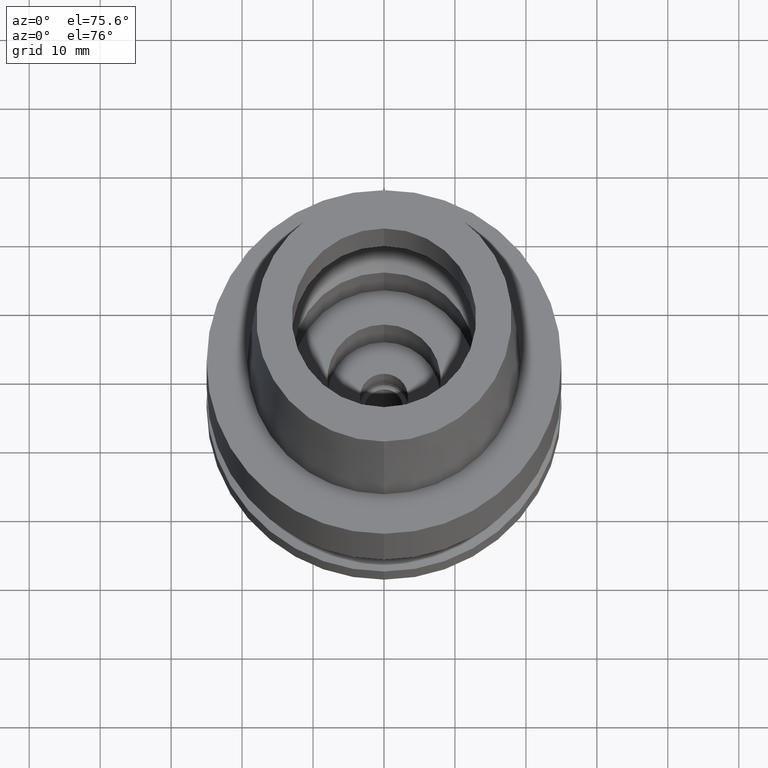
[diagram: clean part render]
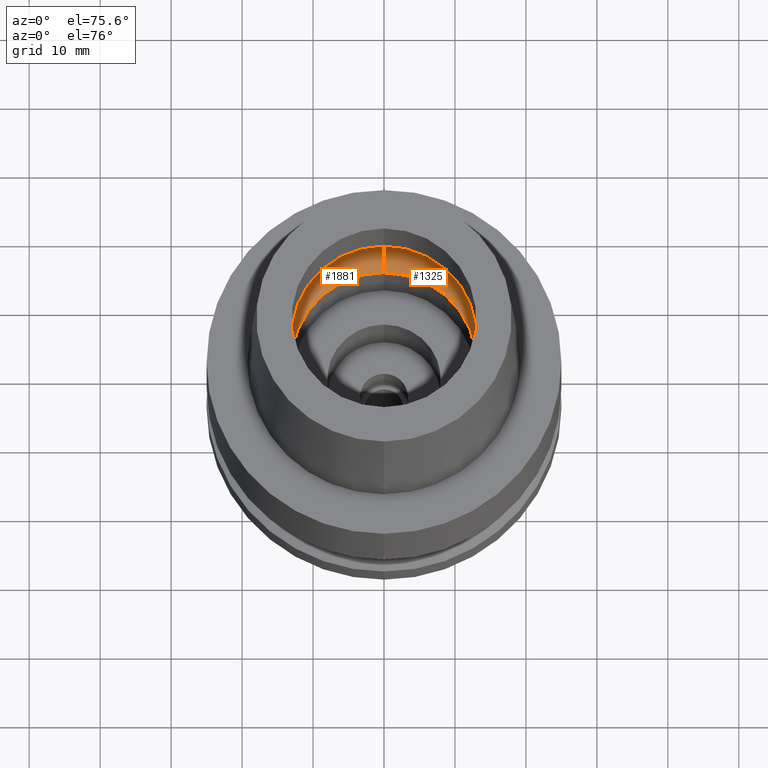
[diagram: same view with one multi-face feature highlighted, each face labeled with its STEP entity id]
A machine part, auxiliary view. The highlighted faces form ONE feature: a constant-radius fillet chain: 2 tangent blend faces with common blend radius 6 mm. The faces share edges in the B-rep.
Their STEP definitions:
[1] entity #1881 (Torus):
#84 = EDGE_CURVE ( 'NONE', #827, #768, #1248, .T. ) ;
#343 = ORIENTED_EDGE ( 'NONE', *, *, #1279, .T. ) ;
#371 = TOROIDAL_SURFACE ( 'NONE', #2243, 10.00000000000000000, 6.000000000000000000 ) ;
#435 = CARTESIAN_POINT ( 'NONE',  ( 0.0000000000000000000, 16.00000000000000000, 5.245999999999999552 ) ) ;
#445 = CARTESIAN_POINT ( 'NONE',  ( 0.0000000000000000000, -10.00000000000000000, 5.245999999999999552 ) ) ;
#536 = AXIS2_PLACEMENT_3D ( 'NONE', #2119, #1357, #1092 ) ;
#588 = AXIS2_PLACEMENT_3D ( 'NONE', #445, #1696, #1052 ) ;
#626 = CARTESIAN_POINT ( 'NONE',  ( 0.0000000000000000000, -16.00000000000000000, 5.245999999999999552 ) ) ;
#667 = EDGE_LOOP ( 'NONE', ( #1711, #2447, #1794, #343 ) ) ;
#768 = VERTEX_POINT ( 'NONE', #435 ) ;
#783 = EDGE_CURVE ( 'NONE', #2288, #2557, #1975, .T. ) ;
#811 = DIRECTION ( 'NONE',  ( 0.0000000000000000000, 1.000000000000000000, 0.0000000000000000000 ) ) ;
#827 = VERTEX_POINT ( 'NONE', #626 ) ;
#986 = CIRCLE ( 'NONE', #588, 6.000000000000000000 ) ;
#1052 = DIRECTION ( 'NONE',  ( 0.0000000000000000000, -0.5000000000000169864, -0.8660254037844289376 ) ) ;
#1092 = DIRECTION ( 'NONE',  ( 0.0000000000000000000, -1.000000000000000000, 0.0000000000000000000 ) ) ;
#1248 = CIRCLE ( 'NONE', #536, 16.00000000000000000 ) ;
#1279 = EDGE_CURVE ( 'NONE', #2288, #768, #1890, .T. ) ;
#1357 = DIRECTION ( 'NONE',  ( 0.0000000000000000000, 0.0000000000000000000, -1.000000000000000000 ) ) ;
#1442 = CARTESIAN_POINT ( 'NONE',  ( 0.0000000000000000000, 13.00000000000000000, 0.04984757729336999899 ) ) ;
#1639 = DIRECTION ( 'NONE',  ( 0.0000000000000000000, 1.000000000000000000, 0.0000000000000000000 ) ) ;
#1662 = FACE_OUTER_BOUND ( 'NONE', #667, .T. ) ;
#1696 = DIRECTION ( 'NONE',  ( -1.000000000000000000, 0.0000000000000000000, 0.0000000000000000000 ) ) ;
#1711 = ORIENTED_EDGE ( 'NONE', *, *, #84, .F. ) ;
#1794 = ORIENTED_EDGE ( 'NONE', *, *, #783, .F. ) ;
#1881 = ADVANCED_FACE ( 'NONE', ( #1662 ), #371, .F. ) ;
#1883 = CARTESIAN_POINT ( 'NONE',  ( 0.0000000000000000000, 0.0000000000000000000, 0.04984757729336999899 ) ) ;
#1890 = CIRCLE ( 'NONE', #2248, 6.000000000000000000 ) ;
#1894 = DIRECTION ( 'NONE',  ( 0.0000000000000000000, 0.5000000000000169864, -0.8660254037844289376 ) ) ;
#1906 = CARTESIAN_POINT ( 'NONE',  ( 0.0000000000000000000, -13.00000000000000000, 0.04984757729336999899 ) ) ;
#1933 = AXIS2_PLACEMENT_3D ( 'NONE', #1883, #2305, #811 ) ;
#1975 = CIRCLE ( 'NONE', #1933, 13.00000000000000000 ) ;
#2026 = CARTESIAN_POINT ( 'NONE',  ( 0.0000000000000000000, 10.00000000000000000, 5.245999999999999552 ) ) ;
#2052 = EDGE_CURVE ( 'NONE', #2557, #827, #986, .T. ) ;
#2119 = CARTESIAN_POINT ( 'NONE',  ( 0.0000000000000000000, 0.0000000000000000000, 5.245999999999999552 ) ) ;
#2160 = CARTESIAN_POINT ( 'NONE',  ( 0.0000000000000000000, 0.0000000000000000000, 5.245999999999999552 ) ) ;
#2232 = DIRECTION ( 'NONE',  ( 1.000000000000000000, 0.0000000000000000000, 0.0000000000000000000 ) ) ;
#2243 = AXIS2_PLACEMENT_3D ( 'NONE', #2160, #2335, #1639 ) ;
#2248 = AXIS2_PLACEMENT_3D ( 'NONE', #2026, #2232, #1894 ) ;
#2288 = VERTEX_POINT ( 'NONE', #1442 ) ;
#2305 = DIRECTION ( 'NONE',  ( 0.0000000000000000000, 0.0000000000000000000, 1.000000000000000000 ) ) ;
#2335 = DIRECTION ( 'NONE',  ( 0.0000000000000000000, 0.0000000000000000000, 1.000000000000000000 ) ) ;
#2447 = ORIENTED_EDGE ( 'NONE', *, *, #2052, .F. ) ;
#2557 = VERTEX_POINT ( 'NONE', #1906 ) ;
[2] entity #1325 (Torus):
#35 = DIRECTION ( 'NONE',  ( 0.0000000000000000000, 1.000000000000000000, 0.0000000000000000000 ) ) ;
#149 = TOROIDAL_SURFACE ( 'NONE', #1247, 10.00000000000000000, 6.000000000000000000 ) ;
#435 = CARTESIAN_POINT ( 'NONE',  ( 0.0000000000000000000, 16.00000000000000000, 5.245999999999999552 ) ) ;
#444 = CARTESIAN_POINT ( 'NONE',  ( 0.0000000000000000000, 0.0000000000000000000, 5.245999999999999552 ) ) ;
#445 = CARTESIAN_POINT ( 'NONE',  ( 0.0000000000000000000, -10.00000000000000000, 5.245999999999999552 ) ) ;
#513 = ORIENTED_EDGE ( 'NONE', *, *, #2393, .F. ) ;
#570 = DIRECTION ( 'NONE',  ( 0.0000000000000000000, 0.0000000000000000000, -1.000000000000000000 ) ) ;
#588 = AXIS2_PLACEMENT_3D ( 'NONE', #445, #1696, #1052 ) ;
#601 = ORIENTED_EDGE ( 'NONE', *, *, #2113, .F. ) ;
#626 = CARTESIAN_POINT ( 'NONE',  ( 0.0000000000000000000, -16.00000000000000000, 5.245999999999999552 ) ) ;
#683 = DIRECTION ( 'NONE',  ( 0.0000000000000000000, -1.000000000000000000, 0.0000000000000000000 ) ) ;
#768 = VERTEX_POINT ( 'NONE', #435 ) ;
#796 = EDGE_LOOP ( 'NONE', ( #601, #2224, #513, #872 ) ) ;
#827 = VERTEX_POINT ( 'NONE', #626 ) ;
#859 = FACE_OUTER_BOUND ( 'NONE', #796, .T. ) ;
#872 = ORIENTED_EDGE ( 'NONE', *, *, #1279, .F. ) ;
#885 = DIRECTION ( 'NONE',  ( 0.0000000000000000000, 0.0000000000000000000, 1.000000000000000000 ) ) ;
#914 = CARTESIAN_POINT ( 'NONE',  ( 0.0000000000000000000, 0.0000000000000000000, 0.04984757729336999899 ) ) ;
#986 = CIRCLE ( 'NONE', #588, 6.000000000000000000 ) ;
#1009 = DIRECTION ( 'NONE',  ( 0.0000000000000000000, 1.000000000000000000, 0.0000000000000000000 ) ) ;
#1052 = DIRECTION ( 'NONE',  ( 0.0000000000000000000, -0.5000000000000169864, -0.8660254037844289376 ) ) ;
#1068 = CIRCLE ( 'NONE', #2591, 16.00000000000000000 ) ;
#1080 = DIRECTION ( 'NONE',  ( 0.0000000000000000000, 0.0000000000000000000, 1.000000000000000000 ) ) ;
#1247 = AXIS2_PLACEMENT_3D ( 'NONE', #444, #1080, #35 ) ;
#1279 = EDGE_CURVE ( 'NONE', #2288, #768, #1890, .T. ) ;
#1325 = ADVANCED_FACE ( 'NONE', ( #859 ), #149, .F. ) ;
#1430 = CARTESIAN_POINT ( 'NONE',  ( 0.0000000000000000000, 0.0000000000000000000, 5.245999999999999552 ) ) ;
#1442 = CARTESIAN_POINT ( 'NONE',  ( 0.0000000000000000000, 13.00000000000000000, 0.04984757729336999899 ) ) ;
#1696 = DIRECTION ( 'NONE',  ( -1.000000000000000000, 0.0000000000000000000, 0.0000000000000000000 ) ) ;
#1890 = CIRCLE ( 'NONE', #2248, 6.000000000000000000 ) ;
#1894 = DIRECTION ( 'NONE',  ( 0.0000000000000000000, 0.5000000000000169864, -0.8660254037844289376 ) ) ;
#1906 = CARTESIAN_POINT ( 'NONE',  ( 0.0000000000000000000, -13.00000000000000000, 0.04984757729336999899 ) ) ;
#2026 = CARTESIAN_POINT ( 'NONE',  ( 0.0000000000000000000, 10.00000000000000000, 5.245999999999999552 ) ) ;
#2052 = EDGE_CURVE ( 'NONE', #2557, #827, #986, .T. ) ;
#2113 = EDGE_CURVE ( 'NONE', #2557, #2288, #2637, .T. ) ;
#2224 = ORIENTED_EDGE ( 'NONE', *, *, #2052, .T. ) ;
#2232 = DIRECTION ( 'NONE',  ( 1.000000000000000000, 0.0000000000000000000, 0.0000000000000000000 ) ) ;
#2248 = AXIS2_PLACEMENT_3D ( 'NONE', #2026, #2232, #1894 ) ;
#2288 = VERTEX_POINT ( 'NONE', #1442 ) ;
#2393 = EDGE_CURVE ( 'NONE', #768, #827, #1068, .T. ) ;
#2557 = VERTEX_POINT ( 'NONE', #1906 ) ;
#2591 = AXIS2_PLACEMENT_3D ( 'NONE', #1430, #570, #1009 ) ;
#2637 = CIRCLE ( 'NONE', #2680, 13.00000000000000000 ) ;
#2680 = AXIS2_PLACEMENT_3D ( 'NONE', #914, #885, #683 ) ;